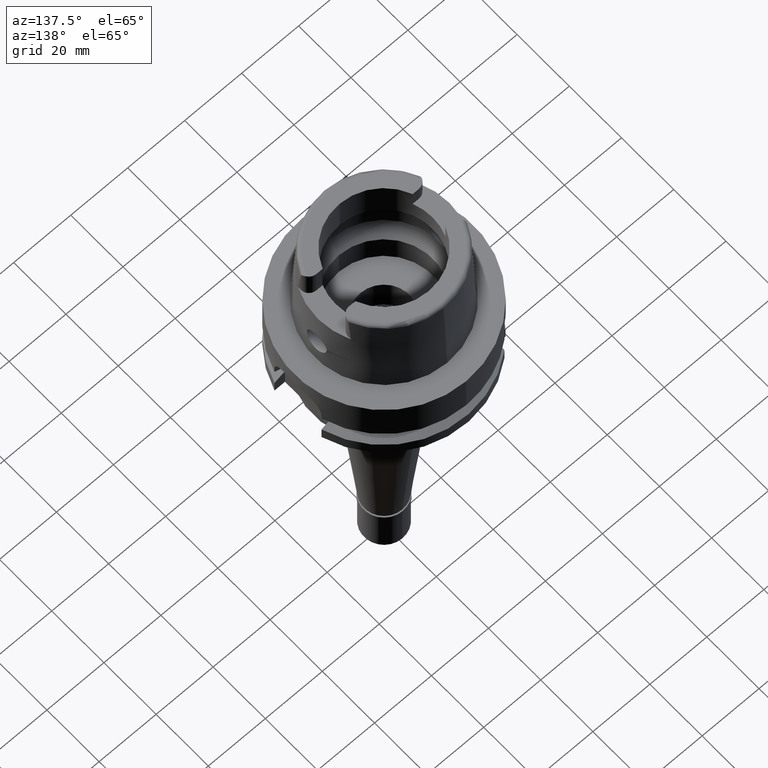
[diagram: clean part render]
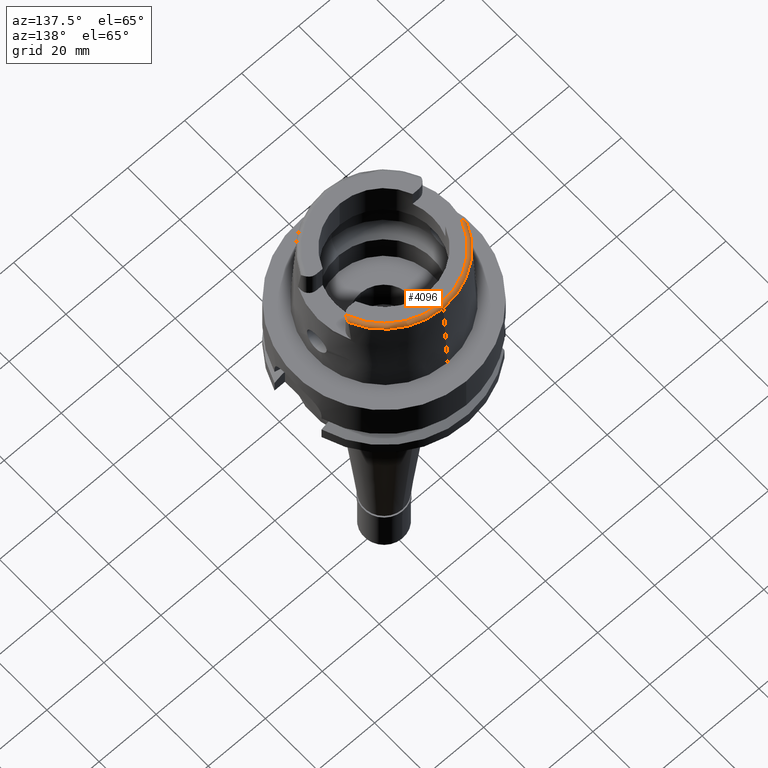
[diagram: same view with one face highlighted and labeled with its STEP entity id]
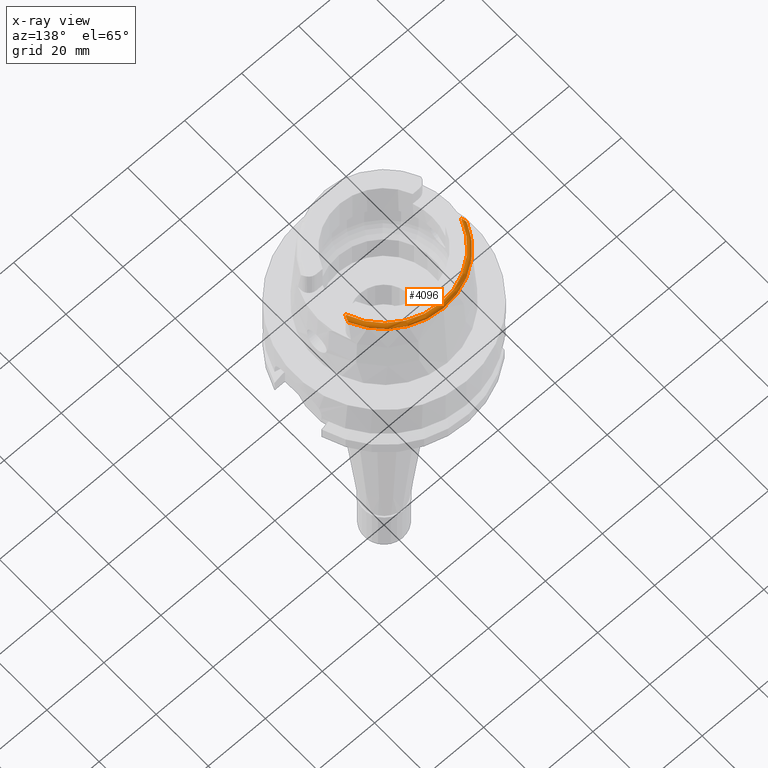
[diagram: x-ray of the same camera — body ghosted, the highlighted face saturated]
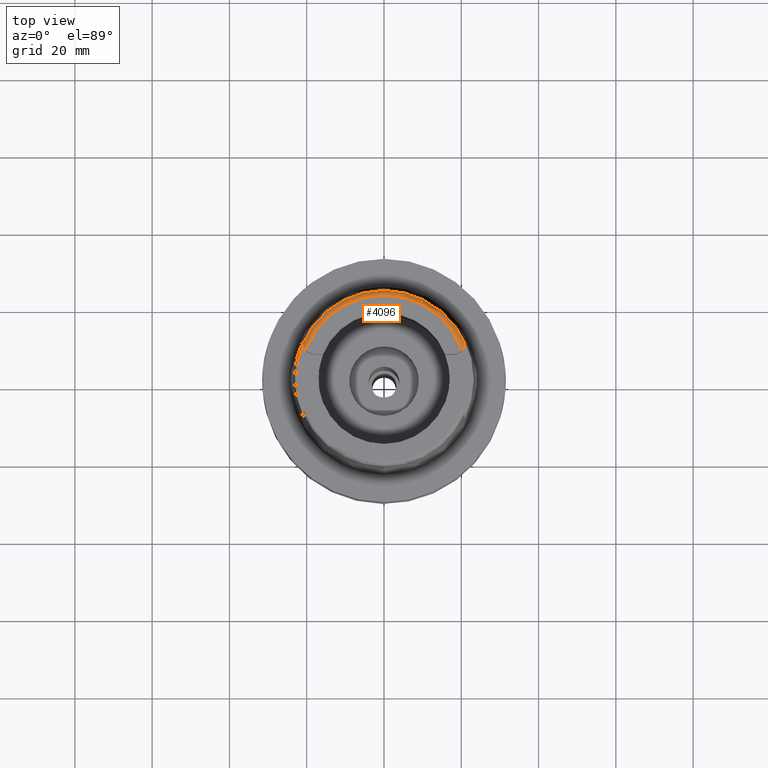
[diagram: same view with one face highlighted and labeled with its STEP entity id]
A machine part, auxiliary view. The second image highlights one B-rep face of the part: STEP entity #4096.
The next image is the same camera in x-ray: the body ghosted, the highlighted face saturated — about 0% of this face is hidden behind the body in this view.
A second angle (top view) of the same face is appended — the face is thin or edge-on in the first view.
In plain terms, the highlighted toroidal blend (fillet) surface has major radius 21.5735 mm and minor (blend) radius 1.2 mm.
Its self-contained STEP definition (entity closure, byte-faithful):
#61 = CARTESIAN_POINT ( 'NONE',  ( 20.83056658114352899, 8.674692061092091677, 31.47678504318996673 ) ) ;
#76 = CARTESIAN_POINT ( 'NONE',  ( -20.74650017617138076, 8.315558147180039938, 31.71414034790487335 ) ) ;
#103 = CARTESIAN_POINT ( 'NONE',  ( -20.85593029838291557, 8.864456050464445624, 31.30720727746970411 ) ) ;
#134 = CARTESIAN_POINT ( 'NONE',  ( -20.85301849268030949, 8.836229477690411116, 31.33576152537013471 ) ) ;
#149 = DIRECTION ( 'NONE',  ( -0.9164655183265837390, 0.4001136759951928745, 0.0000000000000000000 ) ) ;
#150 = CARTESIAN_POINT ( 'NONE',  ( 20.26871835884000106, 7.388795116668999796, 32.00000000000000000 ) ) ;
#164 = CARTESIAN_POINT ( 'NONE',  ( 0.0000000000000000000, 0.0000000000000000000, 30.85992712280000205 ) ) ;
#177 = CARTESIAN_POINT ( 'NONE',  ( 20.65357777604209488, 8.054577198836108565, 31.84209441325702628 ) ) ;
#192 = CARTESIAN_POINT ( 'NONE',  ( -20.53403836232351765, 7.798609508807378354, 31.93567186212888842 ) ) ;
#236 = CARTESIAN_POINT ( 'NONE',  ( 20.78441259636656469, 8.452752858184899409, 31.63303326924356895 ) ) ;
#388 = CARTESIAN_POINT ( 'NONE',  ( -20.26871835884000106, 7.388795116669998997, 32.00000000000000000 ) ) ;
#389 = AXIS2_PLACEMENT_3D ( 'NONE', #2226, #3870, #149 ) ;
#397 = DIRECTION ( 'NONE',  ( 0.0000000000000000000, 0.0000000000000000000, -1.000000000000000000 ) ) ;
#428 = CARTESIAN_POINT ( 'NONE',  ( 20.82118251697600186, 8.621564466314824315, 31.51743488952762817 ) ) ;
#437 = VERTEX_POINT ( 'NONE', #2220 ) ;
#481 = CARTESIAN_POINT ( 'NONE',  ( 20.86632974765599613, 9.003669157550767466, 31.13565175718765232 ) ) ;
#493 = CIRCLE ( 'NONE', #5019, 22.77198729362000051 ) ;
#522 = CARTESIAN_POINT ( 'NONE',  ( -20.50406382654051640, 7.743686335507582896, 31.95098808543152913 ) ) ;
#531 = CARTESIAN_POINT ( 'NONE',  ( 20.86536947424651700, 8.985253845992344779, 31.16270026292895778 ) ) ;
#544 = VERTEX_POINT ( 'NONE', #1052 ) ;
#766 = ORIENTED_EDGE ( 'NONE', *, *, #2007, .F. ) ;
#886 = EDGE_LOOP ( 'NONE', ( #4350, #2047, #766, #4922, #2080 ) ) ;
#892 = CARTESIAN_POINT ( 'NONE',  ( 0.0000000000000000000, 0.0000000000000000000, 30.80000000000000071 ) ) ;
#895 = VERTEX_POINT ( 'NONE', #5269 ) ;
#897 = CARTESIAN_POINT ( 'NONE',  ( 20.86965268333297274, 9.104790407872100033, 30.91430889163105178 ) ) ;
#921 = FACE_OUTER_BOUND ( 'NONE', #886, .T. ) ;
#925 = CARTESIAN_POINT ( 'NONE',  ( 20.84138565013157773, 8.743556039448455053, 31.42073302554305414 ) ) ;
#965 = CARTESIAN_POINT ( 'NONE',  ( -20.59733111883171119, 7.926069701560151337, 31.89316934246402724 ) ) ;
#1016 = CARTESIAN_POINT ( 'NONE',  ( -20.79485920284451694, 8.496042786632466814, 31.60517549409090066 ) ) ;
#1017 = VERTEX_POINT ( 'NONE', #4490 ) ;
#1052 = CARTESIAN_POINT ( 'NONE',  ( 0.0000000000000000000, 22.77198729362000051, 30.85992712280000205 ) ) ;
#1098 = B_SPLINE_CURVE_WITH_KNOTS ( 'NONE', 3,
 ( #4196, #897, #3844, #3744, #1306, #481, #531, #3331, #3385, #2196, #925, #3797, #61, #5054, #428, #4633, #3952, #236, #1500, #3096, #2228, #1386, #4689, #3979, #1894, #1840, #177, #3530, #1413, #2305, #150 ),
 .UNSPECIFIED., .F., .F.,
 ( 4, 2, 2, 2, 2, 2, 2, 2, 2, 1, 2, 2, 1, 1, 2, 2, 4 ),
 ( 0.0000000000000000000, 0.1250000000000178746, 0.1875000000000308642, 0.2500000000000438538, 0.3750000000000650591, 0.4375000000000756617, 0.4687500000000776601, 0.5000000000000796030, 0.5625000000000761613, 0.5937500000000728306, 0.6093750000000690559, 0.6250000000000652811, 0.6875000000000542899, 0.7187500000000474065, 0.7343750000000450751, 0.7500000000000428546, 1.000000000000000000 ),
 .UNSPECIFIED. ) ;
#1306 = CARTESIAN_POINT ( 'NONE',  ( 20.86784878407782529, 9.037430427359478102, 31.07988293664936208 ) ) ;
#1348 = CARTESIAN_POINT ( 'NONE',  ( -20.77919908703406904, 8.431147308778534466, 31.64693859641329965 ) ) ;
#1374 = CARTESIAN_POINT ( 'NONE',  ( -20.86974110889999778, 9.111383545119000615, 30.85992740046000193 ) ) ;
#1386 = CARTESIAN_POINT ( 'NONE',  ( 20.75801700231134106, 8.354596809496197096, 31.69206689005166311 ) ) ;
#1401 = CARTESIAN_POINT ( 'NONE',  ( -20.73846441464556634, 8.289459595139479831, 31.72846434598013943 ) ) ;
#1413 = CARTESIAN_POINT ( 'NONE',  ( 20.54386043862301392, 7.794786287091219457, 31.94961093935450691 ) ) ;
#1500 = CARTESIAN_POINT ( 'NONE',  ( 20.77608930322482550, 8.419911743586050434, 31.65352095119121500 ) ) ;
#1777 = CARTESIAN_POINT ( 'NONE',  ( -20.79975223615504376, 8.517418763184588570, 31.59098872386421775 ) ) ;
#1829 = CARTESIAN_POINT ( 'NONE',  ( -20.72610278339749357, 8.250301354338771986, 31.74956789267591262 ) ) ;
#1840 = CARTESIAN_POINT ( 'NONE',  ( 20.66414611314312921, 8.080635586950563720, 31.83082704157273568 ) ) ;
#1855 = CARTESIAN_POINT ( 'NONE',  ( -20.63720130948253484, 8.015572966828061752, 31.85834148671905908 ) ) ;
#1894 = CARTESIAN_POINT ( 'NONE',  ( 20.67967357217654367, 8.119743548443492998, 31.81354487692512834 ) ) ;
#2007 = EDGE_CURVE ( 'NONE', #1017, #895, #1098, .T. ) ;
#2047 = ORIENTED_EDGE ( 'NONE', *, *, #5103, .T. ) ;
#2080 = ORIENTED_EDGE ( 'NONE', *, *, #2742, .F. ) ;
#2185 = CARTESIAN_POINT ( 'NONE',  ( -20.40990152064996010, 7.583533652520272561, 31.98774702135786541 ) ) ;
#2196 = CARTESIAN_POINT ( 'NONE',  ( 20.84574740471181897, 8.775788971387390447, 31.39251585133928657 ) ) ;
#2216 = CARTESIAN_POINT ( 'NONE',  ( -20.66469798617859510, 8.080615996468086593, 31.83145533459670062 ) ) ;
#2220 = CARTESIAN_POINT ( 'NONE',  ( -20.86974110889999778, 9.111383545119000615, 30.85992740046000193 ) ) ;
#2226 = CARTESIAN_POINT ( 'NONE',  ( 0.0000000000000000000, 0.0000000000000000000, 30.85992712280000205 ) ) ;
#2228 = CARTESIAN_POINT ( 'NONE',  ( 20.76072948958491082, 8.364129055052110573, 31.68654601875753229 ) ) ;
#2267 = CARTESIAN_POINT ( 'NONE',  ( -20.69508315110066121, 8.158896153925367045, 31.79613234871300875 ) ) ;
#2294 = CARTESIAN_POINT ( 'NONE',  ( 0.0000000000000000000, 0.0000000000000000000, 32.00000000000000000 ) ) ;
#2305 = CARTESIAN_POINT ( 'NONE',  ( 20.41298749433174820, 7.575456379513764382, 32.00000000000001421 ) ) ;
#2317 = TOROIDAL_SURFACE ( 'NONE', #2752, 21.57348458609000019, 1.199999999999999956 ) ;
#2563 = DIRECTION ( 'NONE',  ( 0.0000000000000000000, 0.0000000000000000000, -1.000000000000000000 ) ) ;
#2617 = CARTESIAN_POINT ( 'NONE',  ( -20.86956422870754935, 9.098194174809519197, 30.96871057434045582 ) ) ;
#2742 = EDGE_CURVE ( 'NONE', #437, #544, #4640, .T. ) ;
#2752 = AXIS2_PLACEMENT_3D ( 'NONE', #892, #397, #3381 ) ;
#2970 = CARTESIAN_POINT ( 'NONE',  ( -20.86254007892390305, 8.941738407071053274, 31.21990384385211570 ) ) ;
#2980 = DIRECTION ( 'NONE',  ( 0.0000000000000000000, 0.0000000000000000000, -1.000000000000000000 ) ) ;
#3096 = CARTESIAN_POINT ( 'NONE',  ( 20.76698122616360109, 8.386514364179891601, 31.67341512601428732 ) ) ;
#3215 = VERTEX_POINT ( 'NONE', #4122 ) ;
#3331 = CARTESIAN_POINT ( 'NONE',  ( 20.86105690568358639, 8.918924516483333065, 31.24990065727786615 ) ) ;
#3381 = DIRECTION ( 'NONE',  ( -0.0009289215035770252184, -0.9999995685523270783, 0.0000000000000000000 ) ) ;
#3385 = CARTESIAN_POINT ( 'NONE',  ( 20.85665761802022189, 8.866481685140149338, 31.30735455438043857 ) ) ;
#3412 = AXIS2_PLACEMENT_3D ( 'NONE', #2294, #2980, #4736 ) ;
#3430 = CARTESIAN_POINT ( 'NONE',  ( -20.61709656424481096, 7.969737265138546078, 31.87651294962239845 ) ) ;
#3485 = CARTESIAN_POINT ( 'NONE',  ( -20.83196185543446788, 8.677081595250520252, 31.47698866303271004 ) ) ;
#3516 = CARTESIAN_POINT ( 'NONE',  ( -20.80892519329534451, 8.559637904033481348, 31.56208371117239508 ) ) ;
#3530 = CARTESIAN_POINT ( 'NONE',  ( 20.64886000332262839, 8.043150835057980785, 31.84694128647423739 ) ) ;
#3661 = B_SPLINE_CURVE_WITH_KNOTS ( 'NONE', 3,
 ( #388, #3859, #2185, #522, #192, #5188, #965, #3430, #4650, #1855, #2216, #2267, #1829, #1401, #76, #5070, #3886, #1348, #1016, #1777, #3516, #3913, #3485, #3834, #134, #103, #5099, #2970, #4620, #2617, #1374 ),
 .UNSPECIFIED., .F., .F.,
 ( 4, 2, 2, 1, 2, 2, 1, 1, 2, 2, 2, 2, 2, 2, 2, 2, 4 ),
 ( 0.0000000000000000000, 0.1249999999999920341, 0.1874999999999883982, 0.2187499999999856781, 0.2343749999999839295, 0.2499999999999821809, 0.3124999999999679701, 0.3437499999999616418, 0.3593749999999587552, 0.3749999999999559241, 0.4374999999999630296, 0.4687499999999656941, 0.4999999999999683586, 0.6249999999999673594, 0.6874999999999704681, 0.7499999999999776845, 1.000000000000000000 ),
 .UNSPECIFIED. ) ;
#3744 = CARTESIAN_POINT ( 'NONE',  ( 20.86836051185172991, 9.052052887944308068, 31.05211402081998884 ) ) ;
#3797 = CARTESIAN_POINT ( 'NONE',  ( 20.83344623065861967, 8.692274385614522814, 31.46280389967494884 ) ) ;
#3834 = CARTESIAN_POINT ( 'NONE',  ( -20.84210954635045709, 8.745551664589852336, 31.42090956845823513 ) ) ;
#3844 = CARTESIAN_POINT ( 'NONE',  ( 20.86946283508016720, 9.089129044842398031, 30.96915375665117764 ) ) ;
#3859 = CARTESIAN_POINT ( 'NONE',  ( -20.34147907621283480, 7.482935885889481220, 32.00000000000000711 ) ) ;
#3870 = DIRECTION ( 'NONE',  ( 0.0000000000000000000, 0.0000000000000000000, -1.000000000000000000 ) ) ;
#3886 = CARTESIAN_POINT ( 'NONE',  ( -20.76745118031936954, 8.386859043047644846, 31.67371772015135178 ) ) ;
#3913 = CARTESIAN_POINT ( 'NONE',  ( -20.81350782498380880, 8.582040054153312170, 31.54622969689547318 ) ) ;
#3952 = CARTESIAN_POINT ( 'NONE',  ( 20.80007563039448470, 8.517658088160464658, 31.59126656251558884 ) ) ;
#3979 = CARTESIAN_POINT ( 'NONE',  ( 20.71364680373125822, 8.211097200486804581, 31.77055207623256194 ) ) ;
#4096 = ADVANCED_FACE ( 'NONE', ( #921 ), #2317, .T. ) ;
#4122 = CARTESIAN_POINT ( 'NONE',  ( -20.26871835884000106, 7.388795116669998997, 32.00000000000000000 ) ) ;
#4196 = CARTESIAN_POINT ( 'NONE',  ( 20.86974092012000170, 9.111384045666000020, 30.85992712280000205 ) ) ;
#4350 = ORIENTED_EDGE ( 'NONE', *, *, #4459, .F. ) ;
#4459 = EDGE_CURVE ( 'NONE', #3215, #437, #3661, .T. ) ;
#4490 = CARTESIAN_POINT ( 'NONE',  ( 20.86974092012000170, 9.111384045666000020, 30.85992712280000205 ) ) ;
#4497 = EDGE_CURVE ( 'NONE', #544, #1017, #493, .T. ) ;
#4620 = CARTESIAN_POINT ( 'NONE',  ( -20.86949381613789711, 9.048680206082982735, 31.07933121344394678 ) ) ;
#4633 = CARTESIAN_POINT ( 'NONE',  ( 20.80920658891245267, 8.559891162750931315, 31.56236696758660187 ) ) ;
#4640 = CIRCLE ( 'NONE', #389, 22.77198729362000407 ) ;
#4650 = CARTESIAN_POINT ( 'NONE',  ( -20.63006004108931890, 7.999026733319569260, 31.86502578214542325 ) ) ;
#4689 = CARTESIAN_POINT ( 'NONE',  ( 20.73895990575669401, 8.289436693022990355, 31.72912781875632149 ) ) ;
#4736 = DIRECTION ( 'NONE',  ( 0.0009289215035771249650, 0.9999995685523269673, 0.0000000000000000000 ) ) ;
#4922 = ORIENTED_EDGE ( 'NONE', *, *, #4497, .F. ) ;
#5019 = AXIS2_PLACEMENT_3D ( 'NONE', #164, #2563, #5127 ) ;
#5054 = CARTESIAN_POINT ( 'NONE',  ( 20.82428497965779357, 8.638565944833064947, 31.50466236782873608 ) ) ;
#5070 = CARTESIAN_POINT ( 'NONE',  ( -20.75092334076163070, 8.330340921394816078, 31.70586294422779616 ) ) ;
#5099 = CARTESIAN_POINT ( 'NONE',  ( -20.86066745988515692, 8.916847352444641217, 31.24975564792668337 ) ) ;
#5103 = EDGE_CURVE ( 'NONE', #3215, #895, #5163, .T. ) ;
#5127 = DIRECTION ( 'NONE',  ( 0.0000000000000000000, 1.000000000000000000, 0.0000000000000000000 ) ) ;
#5163 = CIRCLE ( 'NONE', #3412, 21.57348458609000375 ) ;
#5188 = CARTESIAN_POINT ( 'NONE',  ( -20.57662879361339137, 7.883213377788115039, 31.90810266018412378 ) ) ;
#5269 = CARTESIAN_POINT ( 'NONE',  ( 20.26871835884000106, 7.388795116668999796, 32.00000000000000000 ) ) ;